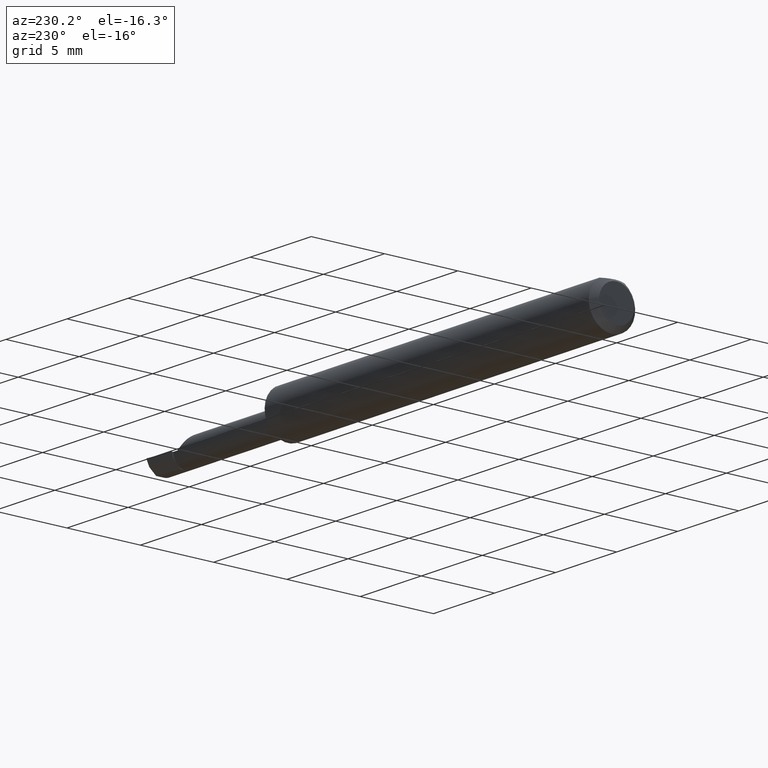
[diagram: clean part render]
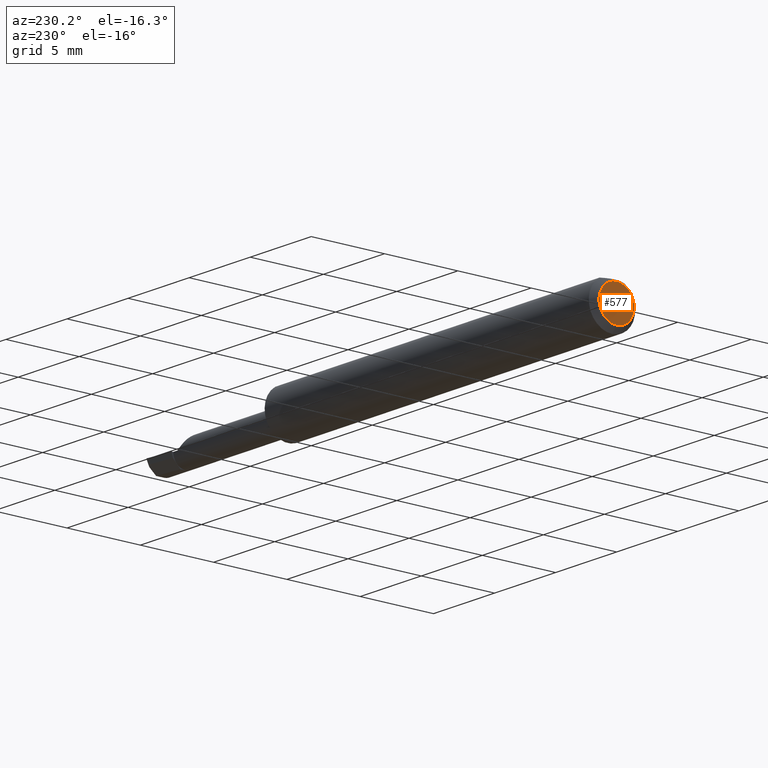
[diagram: same view with one face highlighted and labeled with its STEP entity id]
A machine part, auxiliary view. The second image highlights one B-rep face of the part: STEP entity #577.
In plain terms, the highlighted planar face has unit normal (1, 0, 0).
Its self-contained STEP definition (entity closure, byte-faithful):
#78 = VERTEX_POINT ( 'NONE', #140 ) ;
#120 = DIRECTION ( 'NONE',  ( -1.000000000000000000, -0.0000000000000000000, -0.0000000000000000000 ) ) ;
#140 = CARTESIAN_POINT ( 'NONE',  ( 0.0000000000000000000, 0.0000000000000000000, -0.04734999999999965625 ) ) ;
#213 = FACE_OUTER_BOUND ( 'NONE', #363, .T. ) ;
#241 = AXIS2_PLACEMENT_3D ( 'NONE', #390, #120, #428 ) ;
#247 = DIRECTION ( 'NONE',  ( 1.000000000000000000, 0.0000000000000000000, 0.0000000000000000000 ) ) ;
#263 = DIRECTION ( 'NONE',  ( -1.000000000000000000, -0.0000000000000000000, -0.0000000000000000000 ) ) ;
#302 = AXIS2_PLACEMENT_3D ( 'NONE', #546, #263, #607 ) ;
#327 = PLANE ( 'NONE',  #604 ) ;
#334 = VERTEX_POINT ( 'NONE', #595 ) ;
#363 = EDGE_LOOP ( 'NONE', ( #594, #538 ) ) ;
#390 = CARTESIAN_POINT ( 'NONE',  ( 0.0000000000000000000, 0.0000000000000000000, 0.0000000000000000000 ) ) ;
#398 = CARTESIAN_POINT ( 'NONE',  ( 0.0000000000000000000, 0.0000000000000000000, 0.0000000000000000000 ) ) ;
#428 = DIRECTION ( 'NONE',  ( 0.0000000000000000000, 0.0000000000000000000, 1.000000000000000000 ) ) ;
#479 = EDGE_CURVE ( 'NONE', #78, #334, #648, .T. ) ;
#485 = EDGE_CURVE ( 'NONE', #334, #78, #605, .T. ) ;
#538 = ORIENTED_EDGE ( 'NONE', *, *, #485, .T. ) ;
#546 = CARTESIAN_POINT ( 'NONE',  ( 0.0000000000000000000, 0.0000000000000000000, 0.0000000000000000000 ) ) ;
#577 = ADVANCED_FACE ( 'NONE', ( #213 ), #327, .F. ) ;
#594 = ORIENTED_EDGE ( 'NONE', *, *, #479, .T. ) ;
#595 = CARTESIAN_POINT ( 'NONE',  ( 0.0000000000000000000, 6.717187693324806899E-18, 0.04734999999999965625 ) ) ;
#604 = AXIS2_PLACEMENT_3D ( 'NONE', #398, #247, #629 ) ;
#605 = CIRCLE ( 'NONE', #302, 0.04734999999999965625 ) ;
#607 = DIRECTION ( 'NONE',  ( 0.0000000000000000000, 0.0000000000000000000, 1.000000000000000000 ) ) ;
#629 = DIRECTION ( 'NONE',  ( 0.0000000000000000000, 0.0000000000000000000, -1.000000000000000000 ) ) ;
#648 = CIRCLE ( 'NONE', #241, 0.04734999999999965625 ) ;